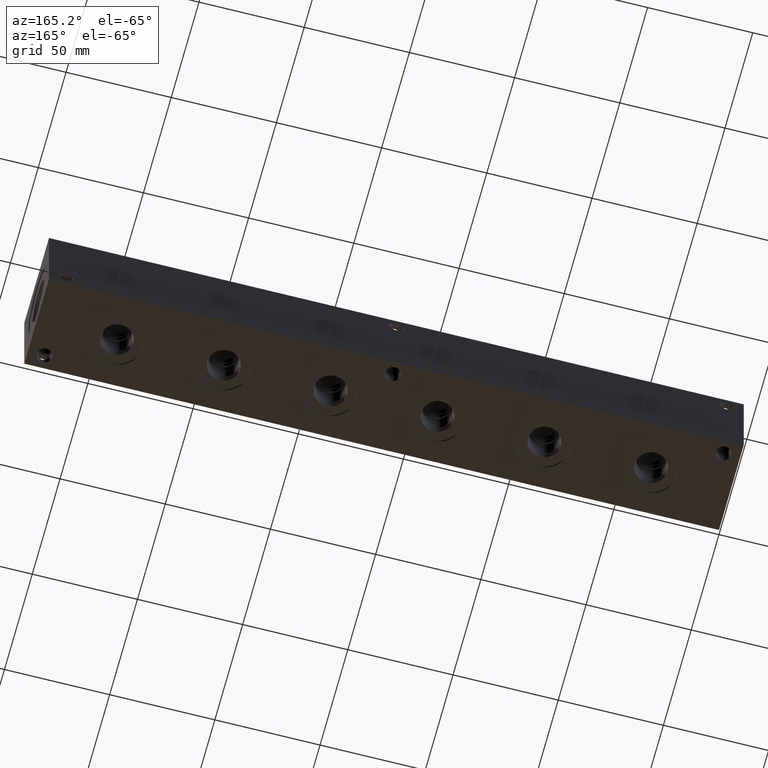
[diagram: clean part render]
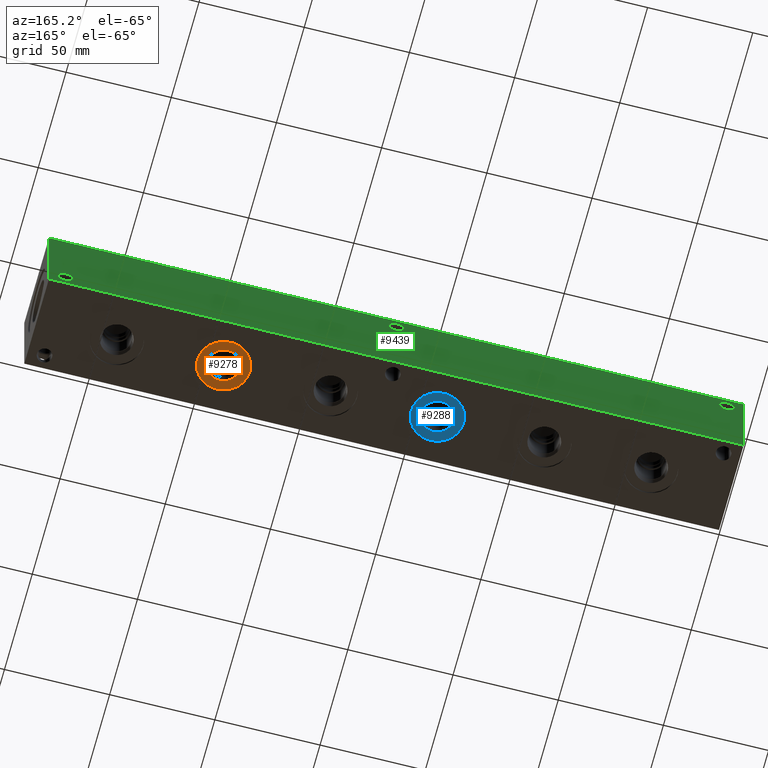
[diagram: same view with three faces highlighted in distinct colors, each labeled with its STEP entity id]
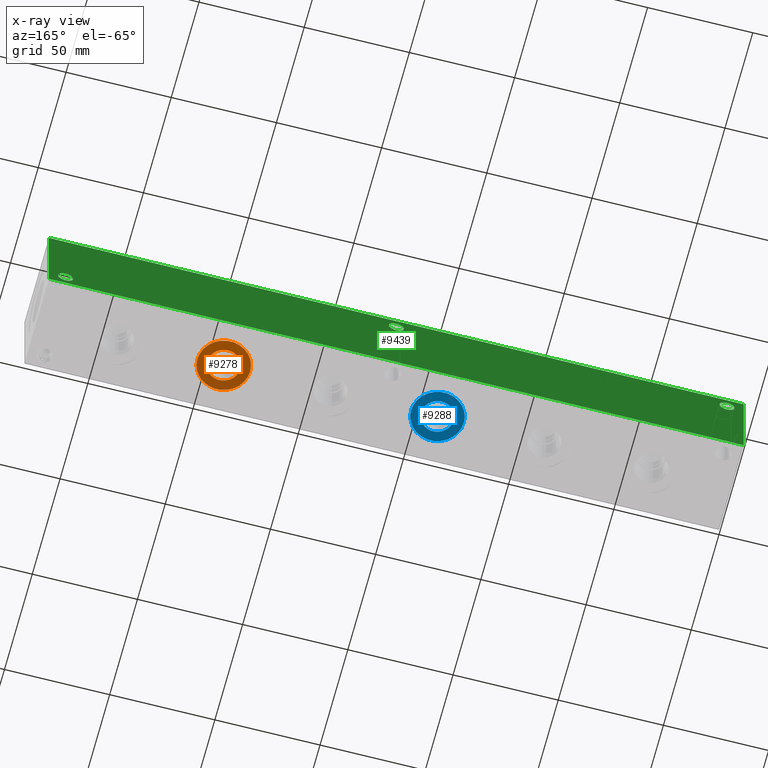
[diagram: x-ray of the same camera — body ghosted, the three highlighted faces saturated]
A machine part, auxiliary view with three faces highlighted in distinct colors.
The next image is the same camera in x-ray (body ghosted, the three faces saturated) — at least one of them is partly hidden behind the body in this view.
Their STEP definitions:

[orange] entity #9278 — the highlighted planar face has unit normal (0, 0, 1).
#195=CIRCLE('',#9697,12.5095);
#196=CIRCLE('',#9698,12.5095);
#197=CIRCLE('',#9700,7.79779999999999);
#198=CIRCLE('',#9701,7.79779999999999);
#495=FACE_BOUND('',#1633,.T.);
#742=PLANE('',#9699);
#1101=FACE_OUTER_BOUND('',#1632,.T.);
#1632=EDGE_LOOP('',(#7667,#7668));
#1633=EDGE_LOOP('',(#7669,#7670));
#4269=VERTEX_POINT('',#15671);
#4270=VERTEX_POINT('',#15673);
#4271=VERTEX_POINT('',#15677);
#4272=VERTEX_POINT('',#15678);
#5455=EDGE_CURVE('',#4269,#4270,#195,.T.);
#5456=EDGE_CURVE('',#4270,#4269,#196,.T.);
#5457=EDGE_CURVE('',#4271,#4272,#197,.T.);
#5458=EDGE_CURVE('',#4272,#4271,#198,.T.);
#7667=ORIENTED_EDGE('',*,*,#5456,.F.);
#7668=ORIENTED_EDGE('',*,*,#5455,.F.);
#7669=ORIENTED_EDGE('',*,*,#5457,.T.);
#7670=ORIENTED_EDGE('',*,*,#5458,.T.);
#9278=ADVANCED_FACE('',(#1101,#495),#742,.F.);
#9697=AXIS2_PLACEMENT_3D('',#15674,#11262,#11263);
#9698=AXIS2_PLACEMENT_3D('',#15675,#11264,#11265);
#9699=AXIS2_PLACEMENT_3D('',#15676,#11266,#11267);
#9700=AXIS2_PLACEMENT_3D('',#15679,#11268,#11269);
#9701=AXIS2_PLACEMENT_3D('',#15680,#11270,#11271);
#11262=DIRECTION('center_axis',(0.,0.,1.));
#11263=DIRECTION('ref_axis',(1.,0.,0.));
#11264=DIRECTION('center_axis',(0.,0.,1.));
#11265=DIRECTION('ref_axis',(1.,0.,0.));
#11266=DIRECTION('center_axis',(0.,0.,1.));
#11267=DIRECTION('ref_axis',(1.,0.,0.));
#11268=DIRECTION('center_axis',(0.,0.,1.));
#11269=DIRECTION('ref_axis',(1.,0.,0.));
#11270=DIRECTION('center_axis',(0.,0.,1.));
#11271=DIRECTION('ref_axis',(1.,0.,0.));
#15671=CARTESIAN_POINT('',(228.7905,22.225,0.7874));
#15673=CARTESIAN_POINT('',(253.8095,22.225,0.7874));
#15674=CARTESIAN_POINT('Origin',(241.3,22.225,0.7874));
#15675=CARTESIAN_POINT('Origin',(241.3,22.225,0.7874));
#15676=CARTESIAN_POINT('Origin',(249.0978,22.225,0.7874));
#15677=CARTESIAN_POINT('',(249.0978,22.225,0.7874));
#15678=CARTESIAN_POINT('',(233.5022,22.225,0.7874));
#15679=CARTESIAN_POINT('Origin',(241.3,22.225,0.7874));
#15680=CARTESIAN_POINT('Origin',(241.3,22.225,0.7874));

[blue] entity #9288 — the highlighted planar face has unit normal (0, 0, 1).
#217=CIRCLE('',#9729,12.5095);
#218=CIRCLE('',#9730,12.5095);
#219=CIRCLE('',#9732,7.79780000000001);
#220=CIRCLE('',#9733,7.79780000000001);
#497=FACE_BOUND('',#1645,.T.);
#744=PLANE('',#9731);
#1111=FACE_OUTER_BOUND('',#1644,.T.);
#1644=EDGE_LOOP('',(#7721,#7722));
#1645=EDGE_LOOP('',(#7723,#7724));
#4291=VERTEX_POINT('',#15733);
#4292=VERTEX_POINT('',#15735);
#4293=VERTEX_POINT('',#15739);
#4294=VERTEX_POINT('',#15740);
#5485=EDGE_CURVE('',#4291,#4292,#217,.T.);
#5486=EDGE_CURVE('',#4292,#4291,#218,.T.);
#5487=EDGE_CURVE('',#4293,#4294,#219,.T.);
#5488=EDGE_CURVE('',#4294,#4293,#220,.T.);
#7721=ORIENTED_EDGE('',*,*,#5486,.F.);
#7722=ORIENTED_EDGE('',*,*,#5485,.F.);
#7723=ORIENTED_EDGE('',*,*,#5487,.T.);
#7724=ORIENTED_EDGE('',*,*,#5488,.T.);
#9288=ADVANCED_FACE('',(#1111,#497),#744,.F.);
#9729=AXIS2_PLACEMENT_3D('',#15736,#11334,#11335);
#9730=AXIS2_PLACEMENT_3D('',#15737,#11336,#11337);
#9731=AXIS2_PLACEMENT_3D('',#15738,#11338,#11339);
#9732=AXIS2_PLACEMENT_3D('',#15741,#11340,#11341);
#9733=AXIS2_PLACEMENT_3D('',#15742,#11342,#11343);
#11334=DIRECTION('center_axis',(0.,0.,1.));
#11335=DIRECTION('ref_axis',(1.,0.,0.));
#11336=DIRECTION('center_axis',(0.,0.,1.));
#11337=DIRECTION('ref_axis',(1.,0.,0.));
#11338=DIRECTION('center_axis',(0.,0.,1.));
#11339=DIRECTION('ref_axis',(1.,0.,0.));
#11340=DIRECTION('center_axis',(0.,0.,1.));
#11341=DIRECTION('ref_axis',(1.,0.,0.));
#11342=DIRECTION('center_axis',(0.,0.,1.));
#11343=DIRECTION('ref_axis',(1.,0.,0.));
#15733=CARTESIAN_POINT('',(127.1905,22.225,0.7874));
#15735=CARTESIAN_POINT('',(152.2095,22.225,0.7874));
#15736=CARTESIAN_POINT('Origin',(139.7,22.225,0.7874));
#15737=CARTESIAN_POINT('Origin',(139.7,22.225,0.7874));
#15738=CARTESIAN_POINT('Origin',(147.4978,22.225,0.7874));
#15739=CARTESIAN_POINT('',(147.4978,22.225,0.7874));
#15740=CARTESIAN_POINT('',(131.9022,22.225,0.787399999999998));
#15741=CARTESIAN_POINT('Origin',(139.7,22.225,0.7874));
#15742=CARTESIAN_POINT('Origin',(139.7,22.225,0.7874));

[green] entity #9439 — the highlighted planar face has unit normal (0, 1, 0).
#304=CIRCLE('',#9872,3.5687);
#307=CIRCLE('',#9881,3.5687);
#310=CIRCLE('',#9890,3.5687);
#523=FACE_BOUND('',#1822,.T.);
#524=FACE_BOUND('',#1823,.T.);
#525=FACE_BOUND('',#1824,.T.);
#770=PLANE('',#10131);
#1262=FACE_OUTER_BOUND('',#1821,.T.);
#1821=EDGE_LOOP('',(#8478,#8479,#8480,#8481));
#1822=EDGE_LOOP('',(#8482));
#1823=EDGE_LOOP('',(#8483));
#1824=EDGE_LOOP('',(#8484));
#2104=LINE('',#14689,#2891);
#2623=LINE('',#16512,#3410);
#2624=LINE('',#16515,#3411);
#2625=LINE('',#16516,#3412);
#2891=VECTOR('',#10522,10.);
#3410=VECTOR('',#12265,10.);
#3411=VECTOR('',#12268,10.);
#3412=VECTOR('',#12269,10.);
#3974=VERTEX_POINT('',#14686);
#3975=VERTEX_POINT('',#14688);
#4380=VERTEX_POINT('',#16008);
#4385=VERTEX_POINT('',#16024);
#4390=VERTEX_POINT('',#16040);
#4538=VERTEX_POINT('',#16508);
#4540=VERTEX_POINT('',#16514);
#5024=EDGE_CURVE('',#3974,#3975,#2104,.T.);
#5619=EDGE_CURVE('',#4380,#4380,#304,.T.);
#5628=EDGE_CURVE('',#4385,#4385,#307,.T.);
#5637=EDGE_CURVE('',#4390,#4390,#310,.T.);
#5863=EDGE_CURVE('',#4538,#3975,#2623,.T.);
#5864=EDGE_CURVE('',#4540,#4538,#2624,.T.);
#5865=EDGE_CURVE('',#4540,#3974,#2625,.T.);
#8478=ORIENTED_EDGE('',*,*,#5864,.T.);
#8479=ORIENTED_EDGE('',*,*,#5863,.T.);
#8480=ORIENTED_EDGE('',*,*,#5024,.F.);
#8481=ORIENTED_EDGE('',*,*,#5865,.F.);
#8482=ORIENTED_EDGE('',*,*,#5619,.T.);
#8483=ORIENTED_EDGE('',*,*,#5628,.T.);
#8484=ORIENTED_EDGE('',*,*,#5637,.T.);
#9439=ADVANCED_FACE('',(#1262,#523,#524,#525),#770,.T.);
#9872=AXIS2_PLACEMENT_3D('',#16010,#11663,#11664);
#9881=AXIS2_PLACEMENT_3D('',#16026,#11683,#11684);
#9890=AXIS2_PLACEMENT_3D('',#16042,#11703,#11704);
#10131=AXIS2_PLACEMENT_3D('',#16513,#12266,#12267);
#10522=DIRECTION('',(-1.,0.,0.));
#11663=DIRECTION('center_axis',(0.,-1.,0.));
#11664=DIRECTION('ref_axis',(1.,0.,0.));
#11683=DIRECTION('center_axis',(0.,-1.,0.));
#11684=DIRECTION('ref_axis',(1.,0.,0.));
#11703=DIRECTION('center_axis',(0.,-1.,0.));
#11704=DIRECTION('ref_axis',(1.,0.,0.));
#12265=DIRECTION('',(0.,0.,1.));
#12266=DIRECTION('center_axis',(0.,1.,0.));
#12267=DIRECTION('ref_axis',(-1.,0.,0.));
#12268=DIRECTION('',(-1.,0.,0.));
#12269=DIRECTION('',(0.,0.,1.));
#14686=CARTESIAN_POINT('',(330.2,44.45,44.45));
#14688=CARTESIAN_POINT('',(0.,44.45,44.45));
#14689=CARTESIAN_POINT('',(330.2,44.45,44.45));
#16008=CARTESIAN_POINT('',(161.5313,44.45,38.1));
#16010=CARTESIAN_POINT('Origin',(165.1,44.45,38.1));
#16024=CARTESIAN_POINT('',(4.3561,44.45,38.1));
#16026=CARTESIAN_POINT('Origin',(7.9248,44.45,38.1));
#16040=CARTESIAN_POINT('',(318.7065,44.45,6.35));
#16042=CARTESIAN_POINT('Origin',(322.2752,44.45,6.35));
#16508=CARTESIAN_POINT('',(0.,44.45,0.));
#16512=CARTESIAN_POINT('',(0.,44.45,0.));
#16513=CARTESIAN_POINT('Origin',(330.2,44.45,0.));
#16514=CARTESIAN_POINT('',(330.2,44.45,0.));
#16515=CARTESIAN_POINT('',(330.2,44.45,0.));
#16516=CARTESIAN_POINT('',(330.2,44.45,0.));